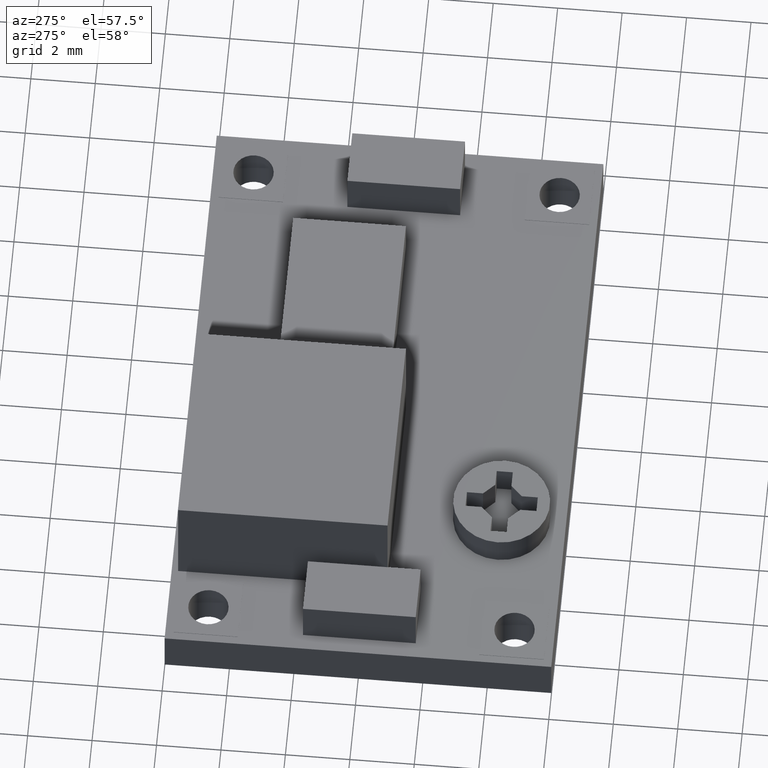
[diagram: clean part render]
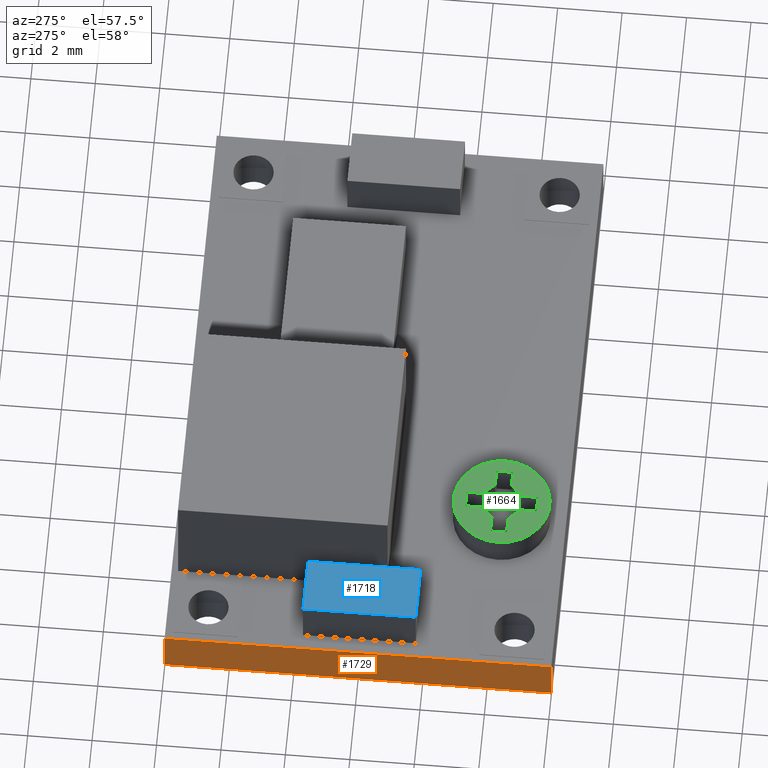
[diagram: same view with three faces highlighted in distinct colors, each labeled with its STEP entity id]
A machine part, auxiliary view with three faces highlighted in distinct colors.
Their STEP definitions:

[orange] entity #1729 — the highlighted planar face has unit normal (-1, 0, 0).
#134=FACE_OUTER_BOUND('',#232,.T.);
#232=EDGE_LOOP('',(#1399,#1400,#1401,#1402));
#448=LINE('',#2689,#657);
#449=LINE('',#2691,#658);
#450=LINE('',#2693,#659);
#451=LINE('',#2694,#660);
#657=VECTOR('',#2235,10.);
#658=VECTOR('',#2236,10.);
#659=VECTOR('',#2237,10.);
#660=VECTOR('',#2238,10.);
#807=VERTEX_POINT('',#2687);
#808=VERTEX_POINT('',#2688);
#809=VERTEX_POINT('',#2690);
#810=VERTEX_POINT('',#2692);
#1022=EDGE_CURVE('',#807,#808,#448,.T.);
#1023=EDGE_CURVE('',#807,#809,#449,.T.);
#1024=EDGE_CURVE('',#810,#809,#450,.T.);
#1025=EDGE_CURVE('',#808,#810,#451,.T.);
#1399=ORIENTED_EDGE('',*,*,#1022,.F.);
#1400=ORIENTED_EDGE('',*,*,#1023,.T.);
#1401=ORIENTED_EDGE('',*,*,#1024,.F.);
#1402=ORIENTED_EDGE('',*,*,#1025,.F.);
#1550=PLANE('',#1842);
#1729=ADVANCED_FACE('',(#134),#1550,.T.);
#1842=AXIS2_PLACEMENT_3D('',#2686,#2233,#2234);
#2233=DIRECTION('center_axis',(-1.,0.,0.));
#2234=DIRECTION('ref_axis',(0.,-1.,-2.22044604925031E-16));
#2235=DIRECTION('',(0.,1.,2.22044604925031E-16));
#2236=DIRECTION('',(0.,-2.22044604925031E-16,1.));
#2237=DIRECTION('',(0.,-1.,-2.22044604925031E-16));
#2238=DIRECTION('',(0.,-2.22044604925031E-16,1.));
#2686=CARTESIAN_POINT('Origin',(-9.25,-0.0100000000000011,-5.99));
#2687=CARTESIAN_POINT('',(-9.25,-12.01,-5.99));
#2688=CARTESIAN_POINT('',(-9.25,-0.0100000000000011,-5.99));
#2689=CARTESIAN_POINT('',(-9.25,-12.01,-5.99));
#2690=CARTESIAN_POINT('',(-9.25,-12.01,-4.49));
#2691=CARTESIAN_POINT('',(-9.25,-12.01,-5.99));
#2692=CARTESIAN_POINT('',(-9.25,-0.0100000000000011,-4.49));
#2693=CARTESIAN_POINT('',(-9.25,-12.01,-4.49));
#2694=CARTESIAN_POINT('',(-9.25,-0.0100000000000011,-5.99));

[blue] entity #1718 — the highlighted planar face has unit normal (0, -0, 1).
#123=FACE_OUTER_BOUND('',#221,.T.);
#221=EDGE_LOOP('',(#1355,#1356,#1357,#1358));
#414=LINE('',#2618,#623);
#417=LINE('',#2624,#626);
#420=LINE('',#2630,#629);
#423=LINE('',#2634,#632);
#623=VECTOR('',#2171,10.);
#626=VECTOR('',#2176,10.);
#629=VECTOR('',#2181,10.);
#632=VECTOR('',#2186,10.);
#785=VERTEX_POINT('',#2615);
#786=VERTEX_POINT('',#2617);
#788=VERTEX_POINT('',#2623);
#790=VERTEX_POINT('',#2629);
#988=EDGE_CURVE('',#786,#785,#414,.T.);
#991=EDGE_CURVE('',#788,#786,#417,.T.);
#994=EDGE_CURVE('',#790,#788,#420,.T.);
#997=EDGE_CURVE('',#785,#790,#423,.T.);
#1355=ORIENTED_EDGE('',*,*,#997,.T.);
#1356=ORIENTED_EDGE('',*,*,#994,.T.);
#1357=ORIENTED_EDGE('',*,*,#991,.T.);
#1358=ORIENTED_EDGE('',*,*,#988,.T.);
#1539=PLANE('',#1831);
#1718=ADVANCED_FACE('',(#123),#1539,.T.);
#1831=AXIS2_PLACEMENT_3D('',#2635,#2187,#2188);
#2171=DIRECTION('',(0.,-1.,-2.22044604925031E-16));
#2176=DIRECTION('',(-1.,0.,0.));
#2181=DIRECTION('',(0.,1.,2.22044604925031E-16));
#2186=DIRECTION('',(1.,0.,0.));
#2187=DIRECTION('center_axis',(0.,-2.22044604925031E-16,1.));
#2188=DIRECTION('ref_axis',(0.,-1.,-2.22044604925031E-16));
#2615=CARTESIAN_POINT('',(-8.75,-7.76,-2.99));
#2617=CARTESIAN_POINT('',(-8.75,-4.26,-2.99));
#2618=CARTESIAN_POINT('',(-8.75,-7.76,-2.99));
#2623=CARTESIAN_POINT('',(-7.,-4.26,-2.99));
#2624=CARTESIAN_POINT('',(-8.75,-4.26,-2.99));
#2629=CARTESIAN_POINT('',(-7.,-7.76,-2.99));
#2630=CARTESIAN_POINT('',(-7.,-4.26,-2.99));
#2634=CARTESIAN_POINT('',(-7.,-7.76,-2.99));
#2635=CARTESIAN_POINT('Origin',(-7.875,-6.01,-2.99));

[green] entity #1664 — the highlighted planar face has unit normal (0, -0, 1).
#14=FACE_BOUND('',#159,.T.);
#36=CIRCLE('',#1767,1.5);
#69=FACE_OUTER_BOUND('',#158,.T.);
#158=EDGE_LOOP('',(#1118));
#159=EDGE_LOOP('',(#1119,#1120,#1121,#1122,#1123,#1124,#1125,#1126,#1127,
#1128,#1129,#1130,#1131,#1132,#1133,#1134));
#251=LINE('',#2261,#460);
#255=LINE('',#2269,#464);
#258=LINE('',#2275,#467);
#261=LINE('',#2281,#470);
#264=LINE('',#2287,#473);
#267=LINE('',#2293,#476);
#270=LINE('',#2299,#479);
#273=LINE('',#2305,#482);
#276=LINE('',#2311,#485);
#279=LINE('',#2317,#488);
#282=LINE('',#2323,#491);
#285=LINE('',#2329,#494);
#288=LINE('',#2335,#497);
#291=LINE('',#2341,#500);
#294=LINE('',#2347,#503);
#297=LINE('',#2352,#506);
#460=VECTOR('',#1852,10.);
#464=VECTOR('',#1858,10.);
#467=VECTOR('',#1863,10.);
#470=VECTOR('',#1868,10.);
#473=VECTOR('',#1873,10.);
#476=VECTOR('',#1878,10.);
#479=VECTOR('',#1883,10.);
#482=VECTOR('',#1888,10.);
#485=VECTOR('',#1893,10.);
#488=VECTOR('',#1898,10.);
#491=VECTOR('',#1903,10.);
#494=VECTOR('',#1908,10.);
#497=VECTOR('',#1913,10.);
#500=VECTOR('',#1918,10.);
#503=VECTOR('',#1923,10.);
#506=VECTOR('',#1928,10.);
#669=VERTEX_POINT('',#2259);
#670=VERTEX_POINT('',#2260);
#673=VERTEX_POINT('',#2268);
#675=VERTEX_POINT('',#2274);
#677=VERTEX_POINT('',#2280);
#679=VERTEX_POINT('',#2286);
#681=VERTEX_POINT('',#2292);
#683=VERTEX_POINT('',#2298);
#685=VERTEX_POINT('',#2304);
#687=VERTEX_POINT('',#2310);
#689=VERTEX_POINT('',#2316);
#691=VERTEX_POINT('',#2322);
#693=VERTEX_POINT('',#2328);
#695=VERTEX_POINT('',#2334);
#697=VERTEX_POINT('',#2340);
#699=VERTEX_POINT('',#2346);
#701=VERTEX_POINT('',#2356);
#815=EDGE_CURVE('',#669,#670,#251,.T.);
#819=EDGE_CURVE('',#673,#669,#255,.T.);
#822=EDGE_CURVE('',#675,#673,#258,.T.);
#825=EDGE_CURVE('',#677,#675,#261,.T.);
#828=EDGE_CURVE('',#679,#677,#264,.T.);
#831=EDGE_CURVE('',#681,#679,#267,.T.);
#834=EDGE_CURVE('',#683,#681,#270,.T.);
#837=EDGE_CURVE('',#685,#683,#273,.T.);
#840=EDGE_CURVE('',#687,#685,#276,.T.);
#843=EDGE_CURVE('',#689,#687,#279,.T.);
#846=EDGE_CURVE('',#691,#689,#282,.T.);
#849=EDGE_CURVE('',#693,#691,#285,.T.);
#852=EDGE_CURVE('',#695,#693,#288,.T.);
#855=EDGE_CURVE('',#697,#695,#291,.T.);
#858=EDGE_CURVE('',#699,#697,#294,.T.);
#861=EDGE_CURVE('',#670,#699,#297,.T.);
#863=EDGE_CURVE('',#701,#701,#36,.T.);
#1118=ORIENTED_EDGE('',*,*,#863,.T.);
#1119=ORIENTED_EDGE('',*,*,#815,.T.);
#1120=ORIENTED_EDGE('',*,*,#861,.T.);
#1121=ORIENTED_EDGE('',*,*,#858,.T.);
#1122=ORIENTED_EDGE('',*,*,#855,.T.);
#1123=ORIENTED_EDGE('',*,*,#852,.T.);
#1124=ORIENTED_EDGE('',*,*,#849,.T.);
#1125=ORIENTED_EDGE('',*,*,#846,.T.);
#1126=ORIENTED_EDGE('',*,*,#843,.T.);
#1127=ORIENTED_EDGE('',*,*,#840,.T.);
#1128=ORIENTED_EDGE('',*,*,#837,.T.);
#1129=ORIENTED_EDGE('',*,*,#834,.T.);
#1130=ORIENTED_EDGE('',*,*,#831,.T.);
#1131=ORIENTED_EDGE('',*,*,#828,.T.);
#1132=ORIENTED_EDGE('',*,*,#825,.T.);
#1133=ORIENTED_EDGE('',*,*,#822,.T.);
#1134=ORIENTED_EDGE('',*,*,#819,.T.);
#1489=PLANE('',#1769);
#1664=ADVANCED_FACE('',(#69,#14),#1489,.T.);
#1767=AXIS2_PLACEMENT_3D('',#2357,#1934,#1935);
#1769=AXIS2_PLACEMENT_3D('',#2361,#1939,#1940);
#1852=DIRECTION('',(0.707106781186553,0.707106781186542,1.57009245868376E-16));
#1858=DIRECTION('',(1.,0.,0.));
#1863=DIRECTION('',(0.,1.,2.22044604925031E-16));
#1868=DIRECTION('',(-1.,0.,0.));
#1873=DIRECTION('',(-0.707106781186551,0.707106781186544,1.57009245868377E-16));
#1878=DIRECTION('',(0.,1.,2.22044604925031E-16));
#1883=DIRECTION('',(-1.,0.,0.));
#1888=DIRECTION('',(4.44089209850066E-15,-1.,-2.22044604925031E-16));
#1893=DIRECTION('',(-0.707106781186553,-0.707106781186542,-1.57009245868376E-16));
#1898=DIRECTION('',(-1.,0.,0.));
#1903=DIRECTION('',(0.,-1.,-2.22044604925031E-16));
#1908=DIRECTION('',(1.,0.,0.));
#1913=DIRECTION('',(0.707106781186553,-0.707106781186542,-1.57009245868376E-16));
#1918=DIRECTION('',(0.,-1.,-2.22044604925031E-16));
#1923=DIRECTION('',(1.,0.,0.));
#1928=DIRECTION('',(-4.44089209850063E-15,1.,2.22044604925031E-16));
#1934=DIRECTION('center_axis',(0.,-2.22044604925031E-16,1.));
#1935=DIRECTION('ref_axis',(-1.,0.,0.));
#1939=DIRECTION('center_axis',(0.,-2.22044604925031E-16,1.));
#1940=DIRECTION('ref_axis',(0.,-1.,-2.22044604925031E-16));
#2259=CARTESIAN_POINT('',(-4.58059279229832,-9.76,-3.49));
#2260=CARTESIAN_POINT('',(-4.23059279229832,-9.41,-3.49));
#2261=CARTESIAN_POINT('',(-4.49309279229832,-9.6725,-3.49));
#2268=CARTESIAN_POINT('',(-5.08059279229833,-9.76,-3.49));
#2269=CARTESIAN_POINT('',(-4.53059279229833,-9.76,-3.49));
#2274=CARTESIAN_POINT('',(-5.08059279229833,-10.26,-3.49));
#2275=CARTESIAN_POINT('',(-5.08059279229833,-10.135,-3.49));
#2280=CARTESIAN_POINT('',(-4.58059279229832,-10.26,-3.49));
#2281=CARTESIAN_POINT('',(-4.28059279229832,-10.26,-3.49));
#2286=CARTESIAN_POINT('',(-4.23059279229832,-10.61,-3.49));
#2287=CARTESIAN_POINT('',(-4.31809279229832,-10.5225,-3.49));
#2292=CARTESIAN_POINT('',(-4.23059279229832,-11.11,-3.49));
#2293=CARTESIAN_POINT('',(-4.23059279229832,-10.56,-3.49));
#2298=CARTESIAN_POINT('',(-3.73059279229832,-11.11,-3.49));
#2299=CARTESIAN_POINT('',(-3.85559279229832,-11.11,-3.49));
#2304=CARTESIAN_POINT('',(-3.73059279229832,-10.61,-3.49));
#2305=CARTESIAN_POINT('',(-3.73059279229832,-10.31,-3.49));
#2310=CARTESIAN_POINT('',(-3.38059279229832,-10.26,-3.49));
#2311=CARTESIAN_POINT('',(-3.46809279229832,-10.3475,-3.49));
#2316=CARTESIAN_POINT('',(-2.88059279229831,-10.26,-3.49));
#2317=CARTESIAN_POINT('',(-3.43059279229832,-10.26,-3.49));
#2322=CARTESIAN_POINT('',(-2.88059279229831,-9.76,-3.49));
#2323=CARTESIAN_POINT('',(-2.88059279229831,-9.885,-3.49));
#2328=CARTESIAN_POINT('',(-3.38059279229832,-9.76,-3.49));
#2329=CARTESIAN_POINT('',(-3.68059279229832,-9.76,-3.49));
#2334=CARTESIAN_POINT('',(-3.73059279229832,-9.41,-3.49));
#2335=CARTESIAN_POINT('',(-3.64309279229832,-9.4975,-3.49));
#2340=CARTESIAN_POINT('',(-3.73059279229832,-8.91,-3.49));
#2341=CARTESIAN_POINT('',(-3.73059279229832,-9.46,-3.49));
#2346=CARTESIAN_POINT('',(-4.23059279229832,-8.91,-3.49));
#2347=CARTESIAN_POINT('',(-4.10559279229832,-8.91,-3.49));
#2352=CARTESIAN_POINT('',(-4.23059279229832,-9.71,-3.49));
#2356=CARTESIAN_POINT('',(-2.48059279229832,-10.01,-3.49));
#2357=CARTESIAN_POINT('Origin',(-3.98059279229832,-10.01,-3.49));
#2361=CARTESIAN_POINT('Origin',(-3.98059279229832,-10.01,-3.49));